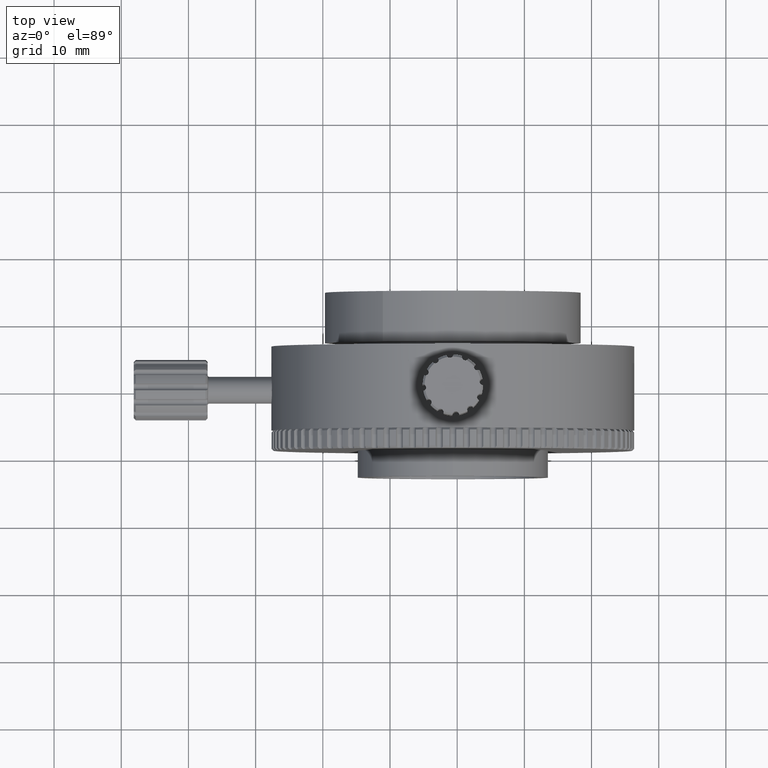
[diagram: clean part render]
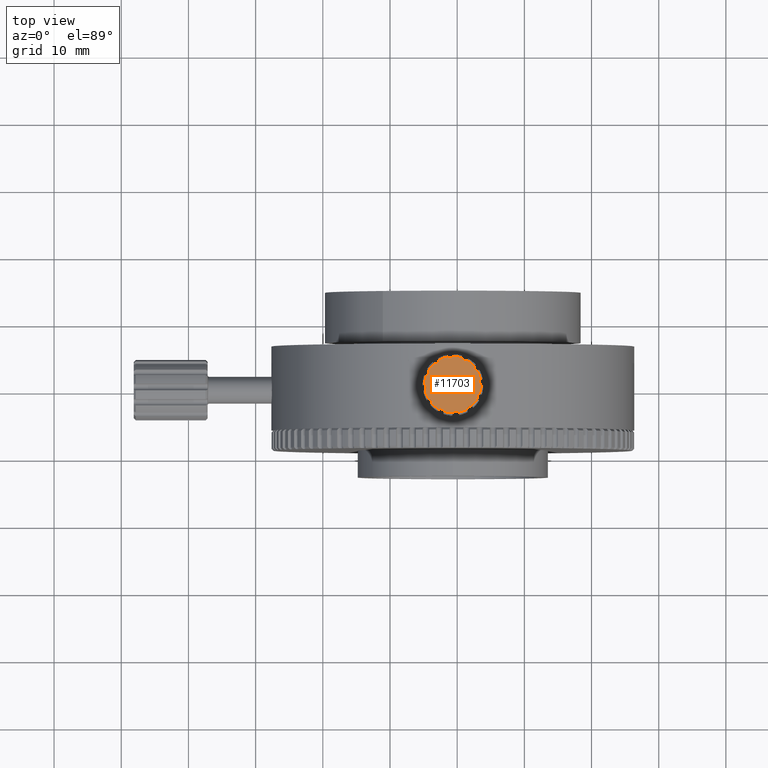
[diagram: same view with one face highlighted and labeled with its STEP entity id]
A machine part, top view. The second image highlights one B-rep face of the part: STEP entity #11703.
In plain terms, the highlighted planar face has unit normal (0, -0, 1).
Its self-contained STEP definition (entity closure, byte-faithful):
#680 = AXIS2_PLACEMENT_3D ( 'NONE', #17997, #7351, #14489 ) ;
#706 = DIRECTION ( 'NONE',  ( 0.9107879295881438075, -0.4128744934196619809, 0.000000000000000000 ) ) ;
#1240 = DIRECTION ( 'NONE',  ( 6.808368128482115038E-17, -1.017949417668873240E-16, 1.000000000000000000 ) ) ;
#1282 = ORIENTED_EDGE ( 'NONE', *, *, #2562, .F. ) ;
#1318 = EDGE_CURVE ( 'NONE', #13669, #11808, #22873, .T. ) ;
#1351 = EDGE_CURVE ( 'NONE', #11365, #6610, #18460, .T. ) ;
#1486 = CARTESIAN_POINT ( 'NONE',  ( 12.99611496745736972, 8.418644694398437878, 123.9410033593991614 ) ) ;
#1500 = DIRECTION ( 'NONE',  ( 6.808368128482115038E-17, -1.017949417668873240E-16, 1.000000000000000000 ) ) ;
#1549 = EDGE_CURVE ( 'NONE', #7094, #3379, #12481, .T. ) ;
#1585 = DIRECTION ( 'NONE',  ( 0.9107879295881438075, -0.4128744934196619809, 0.000000000000000000 ) ) ;
#1709 = DIRECTION ( 'NONE',  ( -6.808368128482115038E-17, 1.017949417668873240E-16, -1.000000000000000000 ) ) ;
#1845 = AXIS2_PLACEMENT_3D ( 'NONE', #16459, #16571, #2550 ) ;
#1944 = AXIS2_PLACEMENT_3D ( 'NONE', #20348, #16750, #4345 ) ;
#2087 = DIRECTION ( 'NONE',  ( 6.808368128482119968E-17, -1.017949417668873486E-16, 1.000000000000000000 ) ) ;
#2140 = CIRCLE ( 'NONE', #20776, 4.199999999999997513 ) ;
#2525 = CIRCLE ( 'NONE', #14431, 0.4999999999999995559 ) ;
#2550 = DIRECTION ( 'NONE',  ( 0.9107879295881438075, -0.4128744934196619809, 0.000000000000000000 ) ) ;
#2562 = EDGE_CURVE ( 'NONE', #17466, #8165, #9467, .T. ) ;
#2687 = DIRECTION ( 'NONE',  ( -6.808368128482115038E-17, 1.017949417668873240E-16, -1.000000000000000000 ) ) ;
#2691 = AXIS2_PLACEMENT_3D ( 'NONE', #20035, #1500, #12470 ) ;
#2784 = VERTEX_POINT ( 'NONE', #10807 ) ;
#2926 = DIRECTION ( 'NONE',  ( 0.9107879295881438075, -0.4128744934196619809, 0.000000000000000000 ) ) ;
#3136 = EDGE_LOOP ( 'NONE', ( #17269, #5131, #16511, #17573, #11971, #4815, #19381, #6723, #18144, #7815, #7928, #12097, #18488, #3580, #7595, #3317, #18303, #9937, #22962, #21222, #19033, #16510, #12923, #5200, #14743, #1282, #4456 ) ) ;
#3317 = ORIENTED_EDGE ( 'NONE', *, *, #22581, .F. ) ;
#3327 = EDGE_CURVE ( 'NONE', #16854, #15433, #3377, .T. ) ;
#3338 = CARTESIAN_POINT ( 'NONE',  ( 13.45150893225144095, 8.212207447688603779, 123.9410033593991614 ) ) ;
#3377 = CIRCLE ( 'NONE', #21669, 0.4999999999999994449 ) ;
#3379 = VERTEX_POINT ( 'NONE', #21738 ) ;
#3547 = DIRECTION ( 'NONE',  ( 6.808368128482115038E-17, -1.017949417668873240E-16, 1.000000000000000000 ) ) ;
#3568 = AXIS2_PLACEMENT_3D ( 'NONE', #18086, #2087, #14696 ) ;
#3580 = ORIENTED_EDGE ( 'NONE', *, *, #13139, .F. ) ;
#3584 = AXIS2_PLACEMENT_3D ( 'NONE', #6717, #13603, #17345 ) ;
#3668 = DIRECTION ( 'NONE',  ( -0.5823282377737329929, 0.8129537646701310294, 0.000000000000000000 ) ) ;
#3937 = AXIS2_PLACEMENT_3D ( 'NONE', #21567, #13053, #9166 ) ;
#4059 = EDGE_CURVE ( 'NONE', #13653, #9625, #12765, .T. ) ;
#4079 = AXIS2_PLACEMENT_3D ( 'NONE', #8713, #4764, #19035 ) ;
#4127 = DIRECTION ( 'NONE',  ( 6.808368128482115038E-17, -1.017949417668873240E-16, 1.000000000000000000 ) ) ;
#4223 = DIRECTION ( 'NONE',  ( 6.808368128482115038E-17, -1.017949417668873240E-16, 1.000000000000000000 ) ) ;
#4319 = CARTESIAN_POINT ( 'NONE',  ( 13.00269983100460358, 7.991820536466527791, 123.9410033593991614 ) ) ;
#4345 = DIRECTION ( 'NONE',  ( -0.9952027311933974163, -0.09783416491800082937, 0.000000000000000000 ) ) ;
#4443 = AXIS2_PLACEMENT_3D ( 'NONE', #18338, #2687, #706 ) ;
#4456 = ORIENTED_EDGE ( 'NONE', *, *, #19879, .F. ) ;
#4570 = EDGE_CURVE ( 'NONE', #6941, #2784, #12022, .T. ) ;
#4585 = AXIS2_PLACEMENT_3D ( 'NONE', #20132, #19780, #14523 ) ;
#4589 = VERTEX_POINT ( 'NONE', #11252 ) ;
#4667 = CIRCLE ( 'NONE', #3937, 4.199999999999997513 ) ;
#4764 = DIRECTION ( 'NONE',  ( 6.808368128482115038E-17, -1.017949417668873240E-16, 1.000000000000000000 ) ) ;
#4815 = ORIENTED_EDGE ( 'NONE', *, *, #19073, .F. ) ;
#5082 = AXIS2_PLACEMENT_3D ( 'NONE', #15638, #1709, #7082 ) ;
#5131 = ORIENTED_EDGE ( 'NONE', *, *, #11978, .F. ) ;
#5200 = ORIENTED_EDGE ( 'NONE', *, *, #1351, .F. ) ;
#5386 = DIRECTION ( 'NONE',  ( -6.808368128482115038E-17, 1.017949417668873240E-16, -1.000000000000000000 ) ) ;
#5441 = DIRECTION ( 'NONE',  ( 0.9107879295881430304, -0.4128744934196637018, 0.000000000000000000 ) ) ;
#5488 = CARTESIAN_POINT ( 'NONE',  ( 11.51804635429250112, 6.618287973771341370, 123.9410033593991614 ) ) ;
#5490 = DIRECTION ( 'NONE',  ( -0.9107879295881440296, 0.4128744934196615923, 0.000000000000000000 ) ) ;
#5520 = CIRCLE ( 'NONE', #11888, 4.199999999999997513 ) ;
#5531 = EDGE_CURVE ( 'NONE', #13720, #15427, #5520, .T. ) ;
#5818 = VERTEX_POINT ( 'NONE', #12358 ) ;
#5820 = AXIS2_PLACEMENT_3D ( 'NONE', #17637, #23092, #17864 ) ;
#6041 = CARTESIAN_POINT ( 'NONE',  ( 5.254417565958171110, 11.92807788846561756, 123.9410033593991614 ) ) ;
#6082 = CARTESIAN_POINT ( 'NONE',  ( 6.603714587056536800, 13.24530121439032548, 123.9410033593991614 ) ) ;
#6147 = DIRECTION ( 'NONE',  ( 0.8129537646701323617, 0.5823282377737311055, 0.000000000000000000 ) ) ;
#6207 = CARTESIAN_POINT ( 'NONE',  ( 13.01125519012041920, 12.69061973805889920, 123.9410033593991614 ) ) ;
#6383 = DIRECTION ( 'NONE',  ( 6.808368128482115038E-17, -1.017949417668873240E-16, 1.000000000000000000 ) ) ;
#6610 = VERTEX_POINT ( 'NONE', #15813 ) ;
#6717 = CARTESIAN_POINT ( 'NONE',  ( 9.352963249104812249, 10.07014266807712488, 123.9410033593991614 ) ) ;
#6723 = ORIENTED_EDGE ( 'NONE', *, *, #16531, .F. ) ;
#6877 = EDGE_CURVE ( 'NONE', #15160, #16811, #20140, .T. ) ;
#6941 = VERTEX_POINT ( 'NONE', #20925 ) ;
#7082 = DIRECTION ( 'NONE',  ( 0.9107879295881438075, -0.4128744934196619809, 0.000000000000000000 ) ) ;
#7094 = VERTEX_POINT ( 'NONE', #17873 ) ;
#7292 = DIRECTION ( 'NONE',  ( -6.808368128482115038E-17, 1.017949417668873240E-16, -1.000000000000000000 ) ) ;
#7351 = DIRECTION ( 'NONE',  ( 6.808368128482115038E-17, -1.017949417668873240E-16, 1.000000000000000000 ) ) ;
#7595 = ORIENTED_EDGE ( 'NONE', *, *, #19612, .F. ) ;
#7676 = CIRCLE ( 'NONE', #17388, 4.199999999999997513 ) ;
#7747 = DIRECTION ( 'NONE',  ( -6.808368128482115038E-17, 1.017949417668873240E-16, -1.000000000000000000 ) ) ;
#7749 = CARTESIAN_POINT ( 'NONE',  ( 13.32146170491559012, 8.694999036950738613, 123.9410033593991614 ) ) ;
#7815 = ORIENTED_EDGE ( 'NONE', *, *, #8318, .F. ) ;
#7928 = ORIENTED_EDGE ( 'NONE', *, *, #5531, .F. ) ;
#8165 = VERTEX_POINT ( 'NONE', #15790 ) ;
#8318 = EDGE_CURVE ( 'NONE', #15427, #13653, #8479, .T. ) ;
#8479 = CIRCLE ( 'NONE', #680, 0.5000000000000002220 ) ;
#8713 = CARTESIAN_POINT ( 'NONE',  ( 13.83137553947509879, 10.51039641020814486, 123.9410033593991614 ) ) ;
#8727 = EDGE_CURVE ( 'NONE', #8165, #11365, #19757, .T. ) ;
#8816 = AXIS2_PLACEMENT_3D ( 'NONE', #18384, #7747, #2926 ) ;
#9166 = DIRECTION ( 'NONE',  ( 0.9107879295881438075, -0.4128744934196619809, 0.000000000000000000 ) ) ;
#9467 = CIRCLE ( 'NONE', #13959, 0.4999999999999999445 ) ;
#9606 = EDGE_CURVE ( 'NONE', #4589, #7094, #16162, .T. ) ;
#9625 = VERTEX_POINT ( 'NONE', #14747 ) ;
#9765 = CARTESIAN_POINT ( 'NONE',  ( 8.912709506973776286, 14.54855495844740965, 123.9410033593991614 ) ) ;
#9937 = ORIENTED_EDGE ( 'NONE', *, *, #6877, .F. ) ;
#9983 = CIRCLE ( 'NONE', #15220, 0.5000000000000008882 ) ;
#10052 = EDGE_CURVE ( 'NONE', #15904, #4589, #21786, .T. ) ;
#10055 = AXIS2_PLACEMENT_3D ( 'NONE', #6207, #4223, #11249 ) ;
#10460 = CARTESIAN_POINT ( 'NONE',  ( 9.352963249104812249, 10.07014266807712488, 123.9410033593991614 ) ) ;
#10610 = CARTESIAN_POINT ( 'NONE',  ( 5.384464793294024609, 11.44528629920348450, 123.9410033593991614 ) ) ;
#10663 = CIRCLE ( 'NONE', #13648, 0.5000000000000005551 ) ;
#10783 = DIRECTION ( 'NONE',  ( 0.9107879295881438075, -0.4128744934196619809, 0.000000000000000000 ) ) ;
#10807 = CARTESIAN_POINT ( 'NONE',  ( 9.377951776832494701, 5.870217005225224050, 123.9410033593991614 ) ) ;
#11071 = CIRCLE ( 'NONE', #3584, 4.199999999999997513 ) ;
#11150 = CARTESIAN_POINT ( 'NONE',  ( 13.83137553947509879, 10.51039641020814486, 123.9410033593991614 ) ) ;
#11181 = DIRECTION ( 'NONE',  ( 0.9952027311933967502, 0.09783416491800771275, 0.000000000000000000 ) ) ;
#11249 = DIRECTION ( 'NONE',  ( 0.5823282377737278859, -0.8129537646701346931, 0.000000000000000000 ) ) ;
#11252 = CARTESIAN_POINT ( 'NONE',  ( 7.274641117494253351, 6.420406086177314009, 123.9410033593991614 ) ) ;
#11264 = DIRECTION ( 'NONE',  ( -0.09783416491801112669, 0.9952027311933963061, 0.000000000000000000 ) ) ;
#11365 = VERTEX_POINT ( 'NONE', #6082 ) ;
#11472 = AXIS2_PLACEMENT_3D ( 'NONE', #12541, #19665, #10783 ) ;
#11703 = ADVANCED_FACE ( 'NONE', ( #20196 ), #21588, .T. ) ;
#11732 = VERTEX_POINT ( 'NONE', #16346 ) ;
#11808 = VERTEX_POINT ( 'NONE', #20416 ) ;
#11888 = AXIS2_PLACEMENT_3D ( 'NONE', #21388, #5386, #12531 ) ;
#11971 = ORIENTED_EDGE ( 'NONE', *, *, #10052, .F. ) ;
#11978 = EDGE_CURVE ( 'NONE', #3379, #16414, #7676, .T. ) ;
#12006 = CARTESIAN_POINT ( 'NONE',  ( 12.10221191115306638, 6.894984121763905627, 123.9410033593991614 ) ) ;
#12022 = CIRCLE ( 'NONE', #1944, 0.5000000000000003331 ) ;
#12097 = ORIENTED_EDGE ( 'NONE', *, *, #22889, .F. ) ;
#12116 = DIRECTION ( 'NONE',  ( -6.808368128482115038E-17, 1.017949417668873240E-16, -1.000000000000000000 ) ) ;
#12317 = CIRCLE ( 'NONE', #16437, 0.4999999999999994449 ) ;
#12358 = CARTESIAN_POINT ( 'NONE',  ( 13.37598157468102578, 10.71683365691797540, 123.9410033593991614 ) ) ;
#12432 = CARTESIAN_POINT ( 'NONE',  ( 5.694671308089223949, 7.449665598095326580, 123.9410033593991614 ) ) ;
#12470 = DIRECTION ( 'NONE',  ( -0.8129537646701375797, -0.5823282377737241111, 0.000000000000000000 ) ) ;
#12481 = CIRCLE ( 'NONE', #12854, 0.5000000000000000000 ) ;
#12531 = DIRECTION ( 'NONE',  ( 0.9107879295881438075, -0.4128744934196619809, 0.000000000000000000 ) ) ;
#12541 = CARTESIAN_POINT ( 'NONE',  ( 9.352963249104812249, 10.07014266807712488, 123.9410033593991614 ) ) ;
#12587 = CIRCLE ( 'NONE', #11472, 4.199999999999997513 ) ;
#12765 = CIRCLE ( 'NONE', #2691, 0.5000000000000002220 ) ;
#12854 = AXIS2_PLACEMENT_3D ( 'NONE', #12432, #3547, #3668 ) ;
#12923 = ORIENTED_EDGE ( 'NONE', *, *, #19240, .F. ) ;
#12981 = CARTESIAN_POINT ( 'NONE',  ( 7.495028028716333779, 5.971596984930478413, 123.9410033593991614 ) ) ;
#13053 = DIRECTION ( 'NONE',  ( -6.808368128482115038E-17, 1.017949417668873240E-16, -1.000000000000000000 ) ) ;
#13139 = EDGE_CURVE ( 'NONE', #21839, #16854, #12587, .T. ) ;
#13279 = DIRECTION ( 'NONE',  ( 6.808368128482115038E-17, -1.017949417668873240E-16, 1.000000000000000000 ) ) ;
#13603 = DIRECTION ( 'NONE',  ( -6.808368128482115038E-17, 1.017949417668873240E-16, -1.000000000000000000 ) ) ;
#13648 = AXIS2_PLACEMENT_3D ( 'NONE', #11150, #22192, #18276 ) ;
#13653 = VERTEX_POINT ( 'NONE', #5488 ) ;
#13669 = VERTEX_POINT ( 'NONE', #16599 ) ;
#13720 = VERTEX_POINT ( 'NONE', #4319 ) ;
#13959 = AXIS2_PLACEMENT_3D ( 'NONE', #6041, #6383, #21914 ) ;
#14144 = CIRCLE ( 'NONE', #4079, 0.5000000000000005551 ) ;
#14322 = DIRECTION ( 'NONE',  ( 6.808368128482115038E-17, -1.017949417668873240E-16, 1.000000000000000000 ) ) ;
#14431 = AXIS2_PLACEMENT_3D ( 'NONE', #19366, #14322, #5441 ) ;
#14486 = VERTEX_POINT ( 'NONE', #19074 ) ;
#14489 = DIRECTION ( 'NONE',  ( -0.8129537646701375797, -0.5823282377737241111, 0.000000000000000000 ) ) ;
#14523 = DIRECTION ( 'NONE',  ( 0.9107879295881438075, -0.4128744934196619809, 0.000000000000000000 ) ) ;
#14696 = DIRECTION ( 'NONE',  ( -0.9107879295881438075, 0.4128744934196618144, 1.040383301308289478E-16 ) ) ;
#14697 = CARTESIAN_POINT ( 'NONE',  ( 5.228570955930175401, 9.276802758579529851, 123.9410033593991614 ) ) ;
#14714 = AXIS2_PLACEMENT_3D ( 'NONE', #14798, #13279, #6147 ) ;
#14743 = ORIENTED_EDGE ( 'NONE', *, *, #8727, .F. ) ;
#14747 = CARTESIAN_POINT ( 'NONE',  ( 11.47456678034611244, 6.445394613905024883, 123.9410033593991614 ) ) ;
#14798 = CARTESIAN_POINT ( 'NONE',  ( 6.732486179123024606, 13.72843460909272295, 123.9410033593991614 ) ) ;
#14883 = CARTESIAN_POINT ( 'NONE',  ( 4.874550958734529260, 9.629888925946074707, 123.9410033593991614 ) ) ;
#15093 = DIRECTION ( 'NONE',  ( 6.808368128482115038E-17, -1.017949417668873240E-16, 1.000000000000000000 ) ) ;
#15160 = VERTEX_POINT ( 'NONE', #21456 ) ;
#15220 = AXIS2_PLACEMENT_3D ( 'NONE', #14883, #4127, #11264 ) ;
#15427 = VERTEX_POINT ( 'NONE', #12006 ) ;
#15433 = VERTEX_POINT ( 'NONE', #1486 ) ;
#15466 = AXIS2_PLACEMENT_3D ( 'NONE', #12981, #18111, #5490 ) ;
#15506 = DIRECTION ( 'NONE',  ( -0.4128744934196707517, -0.9107879295881398107, 0.000000000000000000 ) ) ;
#15614 = CARTESIAN_POINT ( 'NONE',  ( 13.55288891195671397, 10.09513119580482154, 123.9410033593991614 ) ) ;
#15638 = CARTESIAN_POINT ( 'NONE',  ( 9.352963249104812249, 10.07014266807712488, 123.9410033593991614 ) ) ;
#15743 = DIRECTION ( 'NONE',  ( 0.9107879295881438075, -0.4128744934196619809, 0.000000000000000000 ) ) ;
#15790 = CARTESIAN_POINT ( 'NONE',  ( 5.703226667205006706, 12.14846479968769621, 123.9410033593991614 ) ) ;
#15813 = CARTESIAN_POINT ( 'NONE',  ( 7.231359717863486303, 13.69489072224920889, 123.9410033593991614 ) ) ;
#15904 = VERTEX_POINT ( 'NONE', #19104 ) ;
#15910 = CIRCLE ( 'NONE', #5820, 4.199999999999997513 ) ;
#15916 = EDGE_CURVE ( 'NONE', #11732, #15160, #11071, .T. ) ;
#16162 = CIRCLE ( 'NONE', #4585, 4.199999999999997513 ) ;
#16172 = EDGE_CURVE ( 'NONE', #11808, #17604, #20392, .T. ) ;
#16189 = VERTEX_POINT ( 'NONE', #17291 ) ;
#16346 = CARTESIAN_POINT ( 'NONE',  ( 11.43128538071537115, 13.71987924997693753, 123.9410033593991614 ) ) ;
#16414 = VERTEX_POINT ( 'NONE', #14697 ) ;
#16437 = AXIS2_PLACEMENT_3D ( 'NONE', #3338, #1240, #15506 ) ;
#16459 = CARTESIAN_POINT ( 'NONE',  ( 9.352963249104812249, 10.07014266807712488, 123.9410033593991614 ) ) ;
#16510 = ORIENTED_EDGE ( 'NONE', *, *, #1318, .F. ) ;
#16511 = ORIENTED_EDGE ( 'NONE', *, *, #1549, .F. ) ;
#16531 = EDGE_CURVE ( 'NONE', #9625, #6941, #2140, .T. ) ;
#16571 = DIRECTION ( 'NONE',  ( -6.808368128482115038E-17, 1.017949417668873240E-16, -1.000000000000000000 ) ) ;
#16599 = CARTESIAN_POINT ( 'NONE',  ( 8.559623339607231429, 14.19453496125176528, 123.9410033593991614 ) ) ;
#16750 = DIRECTION ( 'NONE',  ( 6.808368128482115038E-17, -1.017949417668873240E-16, 1.000000000000000000 ) ) ;
#16811 = VERTEX_POINT ( 'NONE', #18501 ) ;
#16835 = EDGE_CURVE ( 'NONE', #16414, #14486, #9983, .T. ) ;
#16854 = VERTEX_POINT ( 'NONE', #7749 ) ;
#17269 = ORIENTED_EDGE ( 'NONE', *, *, #16835, .F. ) ;
#17291 = CARTESIAN_POINT ( 'NONE',  ( 13.47735554227945443, 10.86348257757469149, 123.9410033593991614 ) ) ;
#17345 = DIRECTION ( 'NONE',  ( 0.9107879295881438075, -0.4128744934196619809, 0.000000000000000000 ) ) ;
#17388 = AXIS2_PLACEMENT_3D ( 'NONE', #20986, #12116, #15743 ) ;
#17466 = VERTEX_POINT ( 'NONE', #10610 ) ;
#17573 = ORIENTED_EDGE ( 'NONE', *, *, #9606, .F. ) ;
#17604 = VERTEX_POINT ( 'NONE', #17979 ) ;
#17637 = CARTESIAN_POINT ( 'NONE',  ( 9.352963249104812249, 10.07014266807712488, 123.9410033593991614 ) ) ;
#17864 = DIRECTION ( 'NONE',  ( 0.9107879295881438075, -0.4128744934196619809, 0.000000000000000000 ) ) ;
#17873 = CARTESIAN_POINT ( 'NONE',  ( 6.177804702791621416, 7.320894006028838774, 123.9410033593991614 ) ) ;
#17979 = CARTESIAN_POINT ( 'NONE',  ( 10.72810688023115588, 14.03864112388791874, 123.9410033593991614 ) ) ;
#17997 = CARTESIAN_POINT ( 'NONE',  ( 11.97344031908657414, 6.411850727061509936, 123.9410033593991614 ) ) ;
#18086 = CARTESIAN_POINT ( 'NONE',  ( 9.352963249104812249, 10.07014266807712488, 123.9410033593991614 ) ) ;
#18111 = DIRECTION ( 'NONE',  ( 6.808368128482115038E-17, -1.017949417668873240E-16, 1.000000000000000000 ) ) ;
#18144 = ORIENTED_EDGE ( 'NONE', *, *, #4059, .F. ) ;
#18157 = CIRCLE ( 'NONE', #5082, 4.199999999999997513 ) ;
#18276 = DIRECTION ( 'NONE',  ( 0.09783416491800425718, -0.9952027311933969722, 0.000000000000000000 ) ) ;
#18303 = ORIENTED_EDGE ( 'NONE', *, *, #22417, .F. ) ;
#18338 = CARTESIAN_POINT ( 'NONE',  ( 9.352963249104812249, 10.07014266807712488, 123.9410033593991614 ) ) ;
#18384 = CARTESIAN_POINT ( 'NONE',  ( 9.352963249104812249, 10.07014266807712488, 123.9410033593991614 ) ) ;
#18460 = CIRCLE ( 'NONE', #14714, 0.5000000000000002220 ) ;
#18486 = DIRECTION ( 'NONE',  ( -0.4128744934196707517, -0.9107879295881398107, 0.000000000000000000 ) ) ;
#18488 = ORIENTED_EDGE ( 'NONE', *, *, #3327, .F. ) ;
#18501 = CARTESIAN_POINT ( 'NONE',  ( 12.97771130327690514, 12.19174619931843750, 123.9410033593991614 ) ) ;
#19033 = ORIENTED_EDGE ( 'NONE', *, *, #16172, .F. ) ;
#19035 = DIRECTION ( 'NONE',  ( 0.09783416491800425718, -0.9952027311933969722, 0.000000000000000000 ) ) ;
#19073 = EDGE_CURVE ( 'NONE', #2784, #15904, #18157, .T. ) ;
#19074 = CARTESIAN_POINT ( 'NONE',  ( 5.153037586252910529, 10.04515414034939980, 123.9410033593991614 ) ) ;
#19104 = CARTESIAN_POINT ( 'NONE',  ( 7.977819617978467726, 6.101644212266333689, 123.9410033593991614 ) ) ;
#19240 = EDGE_CURVE ( 'NONE', #6610, #13669, #4667, .T. ) ;
#19366 = CARTESIAN_POINT ( 'NONE',  ( 11.21089846949329072, 14.16868835122377313, 123.9410033593991614 ) ) ;
#19381 = ORIENTED_EDGE ( 'NONE', *, *, #4570, .F. ) ;
#19612 = EDGE_CURVE ( 'NONE', #5818, #21839, #10663, .T. ) ;
#19665 = DIRECTION ( 'NONE',  ( -6.808368128482115038E-17, 1.017949417668873240E-16, -1.000000000000000000 ) ) ;
#19757 = CIRCLE ( 'NONE', #1845, 4.199999999999997513 ) ;
#19780 = DIRECTION ( 'NONE',  ( -6.808368128482115038E-17, 1.017949417668873240E-16, -1.000000000000000000 ) ) ;
#19879 = EDGE_CURVE ( 'NONE', #14486, #17466, #15910, .T. ) ;
#20035 = CARTESIAN_POINT ( 'NONE',  ( 11.97344031908657414, 6.411850727061509936, 123.9410033593991614 ) ) ;
#20132 = CARTESIAN_POINT ( 'NONE',  ( 9.352963249104812249, 10.07014266807712488, 123.9410033593991614 ) ) ;
#20140 = CIRCLE ( 'NONE', #10055, 0.4999999999999998890 ) ;
#20196 = FACE_OUTER_BOUND ( 'NONE', #3136, .T. ) ;
#20285 = DIRECTION ( 'NONE',  ( 6.808368128482115038E-17, -1.017949417668873240E-16, 1.000000000000000000 ) ) ;
#20348 = CARTESIAN_POINT ( 'NONE',  ( 9.793216991235816238, 5.591730377706838340, 123.9410033593991614 ) ) ;
#20363 = EDGE_CURVE ( 'NONE', #17604, #11732, #2525, .T. ) ;
#20392 = CIRCLE ( 'NONE', #8816, 4.199999999999997513 ) ;
#20416 = CARTESIAN_POINT ( 'NONE',  ( 9.327974721377099598, 14.27006833092902838, 123.9410033593991614 ) ) ;
#20776 = AXIS2_PLACEMENT_3D ( 'NONE', #10460, #7292, #1585 ) ;
#20925 = CARTESIAN_POINT ( 'NONE',  ( 10.14630315860236465, 5.945750374902480928, 123.9410033593991614 ) ) ;
#20986 = CARTESIAN_POINT ( 'NONE',  ( 9.352963249104812249, 10.07014266807712488, 123.9410033593991614 ) ) ;
#21222 = ORIENTED_EDGE ( 'NONE', *, *, #20363, .F. ) ;
#21388 = CARTESIAN_POINT ( 'NONE',  ( 9.352963249104812249, 10.07014266807712488, 123.9410033593991614 ) ) ;
#21456 = CARTESIAN_POINT ( 'NONE',  ( 12.52812179541802351, 12.81939133012538967, 123.9410033593991614 ) ) ;
#21567 = CARTESIAN_POINT ( 'NONE',  ( 9.352963249104812249, 10.07014266807712488, 123.9410033593991614 ) ) ;
#21588 = PLANE ( 'NONE',  #3568 ) ;
#21669 = AXIS2_PLACEMENT_3D ( 'NONE', #22197, #15093, #18486 ) ;
#21738 = CARTESIAN_POINT ( 'NONE',  ( 5.728215194932733567, 7.948539136835786501, 123.9410033593991614 ) ) ;
#21786 = CIRCLE ( 'NONE', #15466, 0.5000000000000000000 ) ;
#21839 = VERTEX_POINT ( 'NONE', #15614 ) ;
#21914 = DIRECTION ( 'NONE',  ( 0.4128744934196651450, 0.9107879295881423642, 0.000000000000000000 ) ) ;
#22192 = DIRECTION ( 'NONE',  ( 6.808368128482115038E-17, -1.017949417668873240E-16, 1.000000000000000000 ) ) ;
#22197 = CARTESIAN_POINT ( 'NONE',  ( 13.45150893225144095, 8.212207447688603779, 123.9410033593991614 ) ) ;
#22344 = CIRCLE ( 'NONE', #4443, 4.199999999999997513 ) ;
#22417 = EDGE_CURVE ( 'NONE', #16811, #16189, #22344, .T. ) ;
#22532 = AXIS2_PLACEMENT_3D ( 'NONE', #9765, #20285, #11181 ) ;
#22581 = EDGE_CURVE ( 'NONE', #16189, #5818, #14144, .T. ) ;
#22873 = CIRCLE ( 'NONE', #22532, 0.5000000000000006661 ) ;
#22889 = EDGE_CURVE ( 'NONE', #15433, #13720, #12317, .T. ) ;
#22962 = ORIENTED_EDGE ( 'NONE', *, *, #15916, .F. ) ;
#23092 = DIRECTION ( 'NONE',  ( -6.808368128482115038E-17, 1.017949417668873240E-16, -1.000000000000000000 ) ) ;